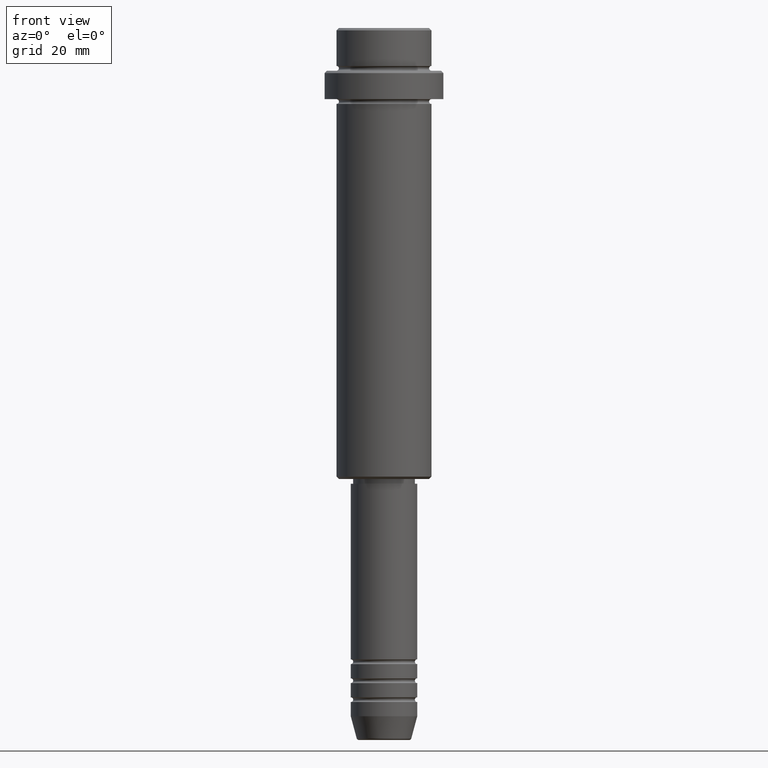
[diagram: clean part render]
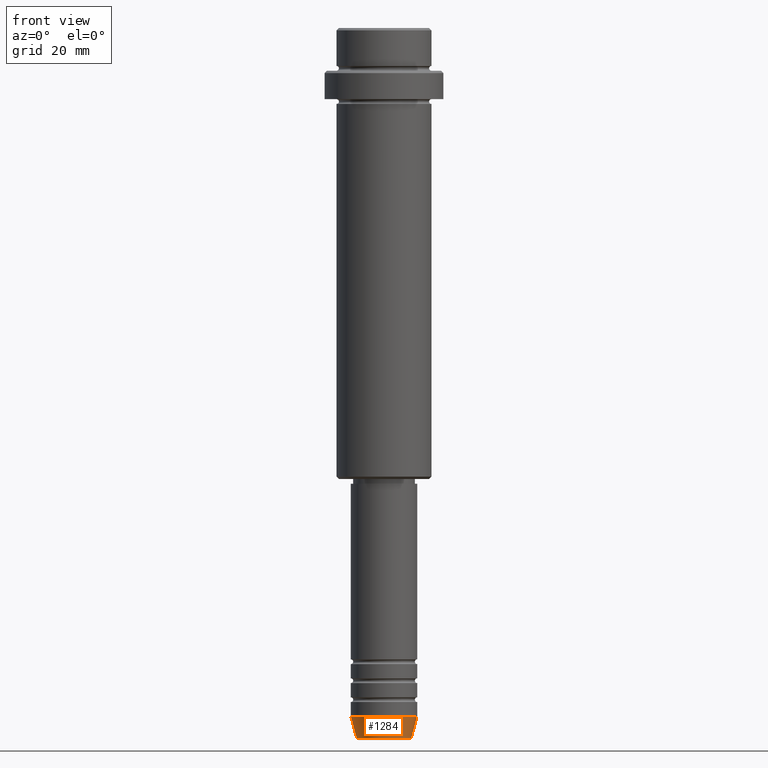
[diagram: same view with one face highlighted and labeled with its STEP entity id]
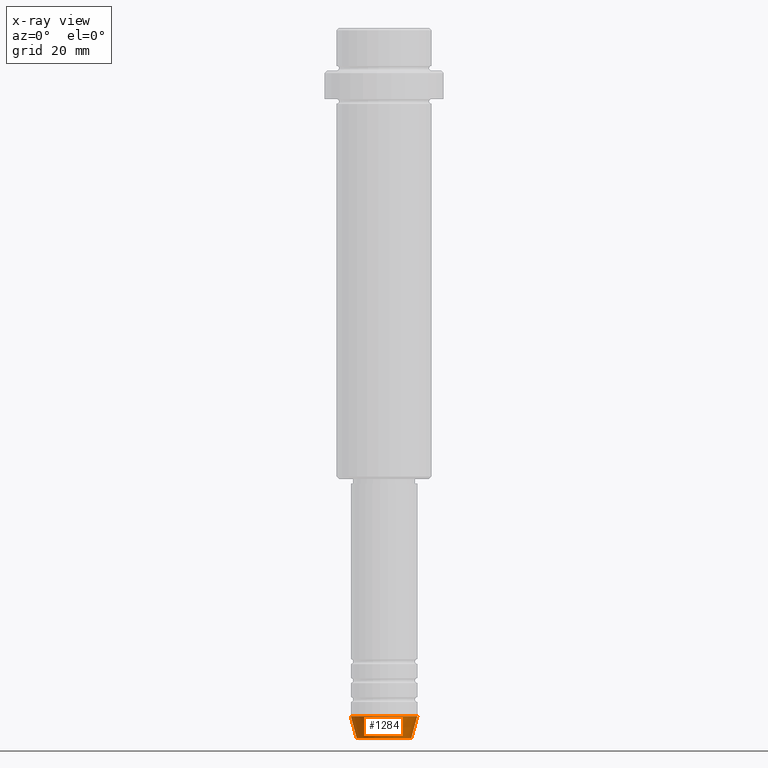
[diagram: x-ray of the same camera — body ghosted, the highlighted face saturated]
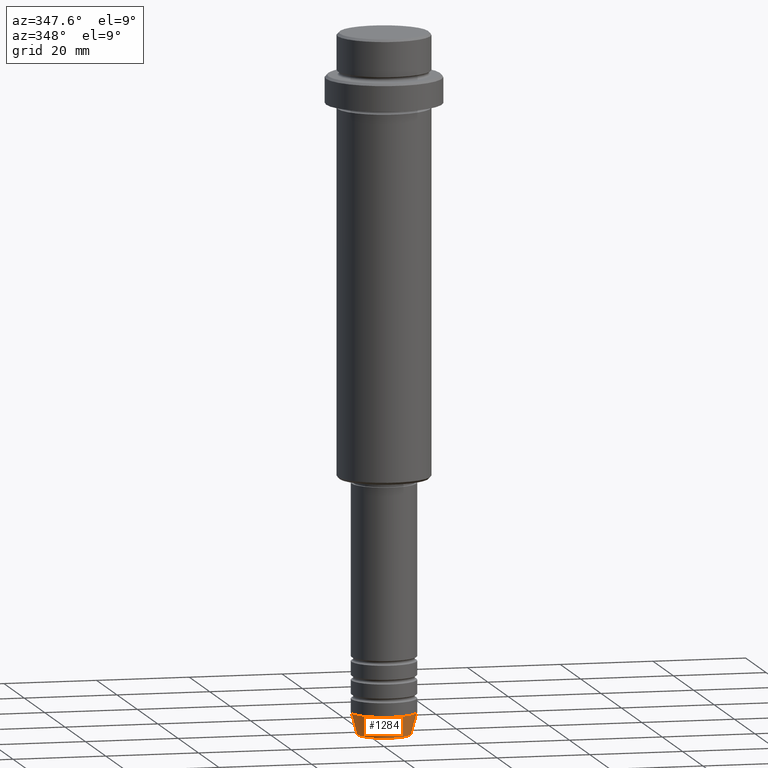
[diagram: same view with one face highlighted and labeled with its STEP entity id]
A machine part, front view. The second image highlights one B-rep face of the part: STEP entity #1284.
The next image is the same camera in x-ray: the body ghosted, the highlighted face saturated — about 0% of this face is hidden behind the body in this view.
A second angle (auxiliary view) of the same face is appended — the face is thin or edge-on in the first view.
In plain terms, the highlighted conical surface has half-angle 15 deg.
Its self-contained STEP definition (entity closure, byte-faithful):
#26 = CIRCLE ( 'NONE', #811, 5.759553456999437770 ) ;
#80 = CARTESIAN_POINT ( 'NONE',  ( 0.000000000000000000, 0.000000000000000000, -145.0000000000000000 ) ) ;
#104 = DIRECTION ( 'NONE',  ( 1.000000000000000000, 0.000000000000000000, 0.000000000000000000 ) ) ;
#125 = ORIENTED_EDGE ( 'NONE', *, *, #996, .F. ) ;
#149 = EDGE_CURVE ( 'NONE', #929, #985, #26, .T. ) ;
#153 = CARTESIAN_POINT ( 'NONE',  ( 0.000000000000000000, 0.000000000000000000, -145.0000000000000000 ) ) ;
#163 = ORIENTED_EDGE ( 'NONE', *, *, #597, .T. ) ;
#173 = CARTESIAN_POINT ( 'NONE',  ( -7.000000000000000000, 8.572527594031473190E-16, -145.0000000000000000 ) ) ;
#321 = CARTESIAN_POINT ( 'NONE',  ( -7.000000000000000000, 8.572527594031473190E-16, -145.0000000000000000 ) ) ;
#396 = VERTEX_POINT ( 'NONE', #321 ) ;
#398 = DIRECTION ( 'NONE',  ( 1.000000000000000000, 0.000000000000000000, 0.000000000000000000 ) ) ;
#407 = VECTOR ( 'NONE', #734, 1000.000000000000114 ) ;
#479 = AXIS2_PLACEMENT_3D ( 'NONE', #80, #848, #398 ) ;
#480 = VECTOR ( 'NONE', #914, 1000.000000000000114 ) ;
#519 = CARTESIAN_POINT ( 'NONE',  ( 5.759553456999437770, 0.000000000000000000, -149.6294095225512137 ) ) ;
#556 = CARTESIAN_POINT ( 'NONE',  ( 7.000000000000000000, 0.000000000000000000, -145.0000000000000000 ) ) ;
#597 = EDGE_CURVE ( 'NONE', #985, #1175, #837, .T. ) ;
#633 = AXIS2_PLACEMENT_3D ( 'NONE', #153, #1132, #1038 ) ;
#645 = CARTESIAN_POINT ( 'NONE',  ( 0.000000000000000000, 0.000000000000000000, -149.6294095225512137 ) ) ;
#734 = DIRECTION ( 'NONE',  ( 0.2588190451025227379, 0.000000000000000000, 0.9659258262890676461 ) ) ;
#811 = AXIS2_PLACEMENT_3D ( 'NONE', #645, #1084, #104 ) ;
#837 = LINE ( 'NONE', #1075, #407 ) ;
#848 = DIRECTION ( 'NONE',  ( -0.000000000000000000, -0.000000000000000000, 1.000000000000000000 ) ) ;
#914 = DIRECTION ( 'NONE',  ( -0.2588190451025227379, 3.169619151431788361E-17, 0.9659258262890676461 ) ) ;
#929 = VERTEX_POINT ( 'NONE', #1278 ) ;
#976 = ORIENTED_EDGE ( 'NONE', *, *, #149, .T. ) ;
#985 = VERTEX_POINT ( 'NONE', #519 ) ;
#996 = EDGE_CURVE ( 'NONE', #396, #1175, #1099, .T. ) ;
#1038 = DIRECTION ( 'NONE',  ( 1.000000000000000000, 0.000000000000000000, 0.000000000000000000 ) ) ;
#1075 = CARTESIAN_POINT ( 'NONE',  ( 7.000000000000000000, 0.000000000000000000, -145.0000000000000000 ) ) ;
#1084 = DIRECTION ( 'NONE',  ( -0.000000000000000000, -0.000000000000000000, 1.000000000000000000 ) ) ;
#1099 = CIRCLE ( 'NONE', #479, 7.000000000000000000 ) ;
#1115 = EDGE_LOOP ( 'NONE', ( #1158, #976, #163, #125 ) ) ;
#1126 = LINE ( 'NONE', #173, #480 ) ;
#1132 = DIRECTION ( 'NONE',  ( -0.000000000000000000, -0.000000000000000000, 1.000000000000000000 ) ) ;
#1135 = FACE_OUTER_BOUND ( 'NONE', #1115, .T. ) ;
#1158 = ORIENTED_EDGE ( 'NONE', *, *, #1211, .F. ) ;
#1175 = VERTEX_POINT ( 'NONE', #556 ) ;
#1211 = EDGE_CURVE ( 'NONE', #929, #396, #1126, .T. ) ;
#1278 = CARTESIAN_POINT ( 'NONE',  ( -5.759553456999437770, 7.812973149831953745E-16, -149.6294095225512137 ) ) ;
#1280 = CONICAL_SURFACE ( 'NONE', #633, 7.000000000000000000, 0.2617993877991514617 ) ;
#1284 = ADVANCED_FACE ( 'NONE', ( #1135 ), #1280, .T. ) ;